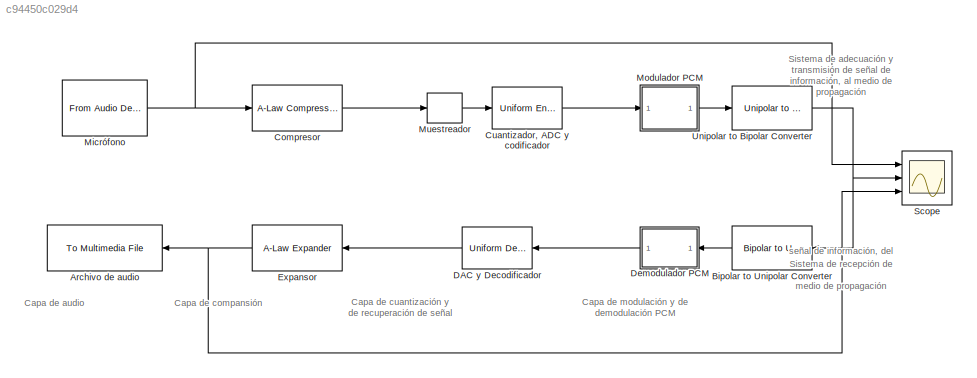
MODEL slx_c94450c029d4
KIND model
CONFIG AbsTol = auto
CONFIG EnableMultiTasking = on
CONFIG FixedStep = auto
CONFIG MaxStep = auto
CONFIG MinStep = 1e-5
CONFIG RelTol = 1e-3
CONFIG SampleTimeConstraint = Unconstrained
CONFIG Solver = VariableStepAuto
CONFIG SolverName = VariableStepAuto
CONFIG StartTime = 0.0
CONFIG StopTime = 10
BLOCK [Reference] Archivo de audio  REF=dspvision/To Multimedia File
  Ports = [1]
  SourceBlock = dspvision/To Multimedia File
  SourceProductBaseCode = VP
  SourceProductName = Computer Vision System Toolbox
  SourceType = To Multimedia File
BLOCK [Reference] Bipolar to Unipolar Converter   REF=commutil2/Bipolar to
Unipolar
Converter
  Ports = [1, 1]
  SourceBlock = commutil2/Bipolar to\nUnipolar\nConverter
  SourceProductBaseCode = CM
  SourceProductName = Communications System Toolbox
  SourceType = Bipolar to Unipolar Converter
BLOCK [Reference] Compresor  REF=commsrccod2/A-Law
Compressor
  Ports = [1, 1]
  SourceBlock = commsrccod2/A-Law\nCompressor
  SourceProductBaseCode = CM
  SourceProductName = Communications System Toolbox
  SourceType = A-Law Compressor
BLOCK [Reference] Cuantizador, ADC y codificador  REF=dspquant2/Uniform
Encoder
  Ports = [1, 1]
  SourceBlock = dspquant2/Uniform\nEncoder
  SourceProductBaseCode = DS
  SourceProductName = DSP System Toolbox
  SourceType = Uniform Encoder
BLOCK [Reference] DAC y Decodificador  REF=dspquant2/Uniform
Decoder
  Ports = [1, 1]
  SourceBlock = dspquant2/Uniform\nDecoder
  SourceProductBaseCode = DS
  SourceProductName = DSP System Toolbox
  SourceType = Uniform Decoder
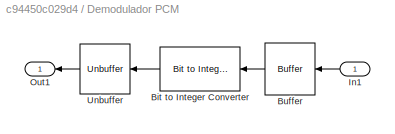
BLOCK [SubSystem] Demodulador PCM
  Ports = [1, 1]
  RequestExecContextInheritance = off
  Variant = off
BLOCK [Reference] Demodulador PCM/Bit to Integer Converter   REF=commutil2/Bit to Integer
Converter
  Ports = [1, 1]
  SourceBlock = commutil2/Bit to Integer\nConverter
  SourceProductBaseCode = CM
  SourceProductName = Communications System Toolbox
  SourceType = Bit to Integer Converter
BLOCK [Buffer] Demodulador PCM/Buffer 
  N = 32*3
  OutputFrames = off
BLOCK [Inport] Demodulador PCM/In1
  IconDisplay = Port number
BLOCK [Outport] Demodulador PCM/Out1
  IconDisplay = Port number
BLOCK [Unbuffer] Demodulador PCM/Unbuffer  
  Ports = [1, 1]
BLOCK [Reference] Expansor  REF=commsrccod2/A-Law
Expander
  Ports = [1, 1]
  SourceBlock = commsrccod2/A-Law\nExpander
  SourceProductBaseCode = CM
  SourceProductName = Communications System Toolbox
  SourceType = A-Law Expander
BLOCK [Reference] Micrófono  REF=dspobslib/From Audio
Device
  Ports = [0, 1]
  SourceBlock = dspobslib/From Audio\nDevice
  SourceProductBaseCode = DS
  SourceProductName = DSP System Toolbox
  SourceType = From Audio Device
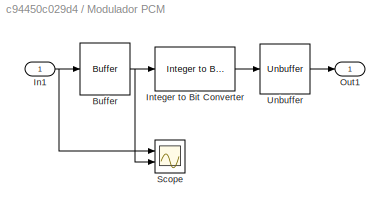
BLOCK [SubSystem] Modulador PCM
  Ports = [1, 1]
  RequestExecContextInheritance = off
  Variant = off
BLOCK [Buffer] Modulador PCM/Buffer 
  N = 3
  OutputFrames = off
BLOCK [Inport] Modulador PCM/In1
  IconDisplay = Port number
BLOCK [Reference] Modulador PCM/Integer to Bit Converter   REF=commutil2/Integer to Bit
Converter
  Ports = [1, 1]
  SourceBlock = commutil2/Integer to Bit\nConverter
  SourceProductBaseCode = CM
  SourceProductName = Communications System Toolbox
  SourceType = Integer to Bit Converter
BLOCK [Outport] Modulador PCM/Out1
  IconDisplay = Port number
BLOCK [Scope] Modulador PCM/Scope
  NumInputPorts = 2
  Ports = [2]
  ScopeSpecificationString = Simulink.scopes.TimeScopeBlockCfg('CurrentConfiguration', extmgr.ConfigurationSet(extmgr.Configuration('Core','General UI',true),extmgr.Configuration('Core','Source UI',true),extmgr.Configuration('Sources','WiredSimulink',true,'DataLoggingVariableName','ScopeData2'),extmgr.Configuration('Visuals','Time Domain',true,'SerializedDisplays',{struct('MinYLimReal','-268435456.00000','MaxYLimReal','241591...<+1497ch>
BLOCK [Unbuffer] Modulador PCM/Unbuffer 
  Ports = [1, 1]
BLOCK [ZeroOrderHold] Muestreador
  SampleTime = 1/(64*4000)
BLOCK [Scope] Scope
  NumInputPorts = 3
  Ports = [3]
  ScopeSpecificationString = Simulink.scopes.TimeScopeBlockCfg('CurrentConfiguration', extmgr.ConfigurationSet(extmgr.Configuration('Core','General UI',true,'FigureColor',[0.831372549019608 0.815686274509804 0.784313725490196]),extmgr.Configuration('Core','Source UI',true),extmgr.Configuration('Sources','WiredSimulink',true),extmgr.Configuration('Visuals','Time Domain',true,'SerializedDisplays',{struct('MinYLimReal','-1','Max...<+3208ch>
BLOCK [Reference] Unipolar to Bipolar Converter   REF=commutil2/Unipolar to
Bipolar
Converter
  Ports = [1, 1]
  SourceBlock = commutil2/Unipolar to\nBipolar\nConverter
  SourceProductBaseCode = CM
  SourceProductName = Communications System Toolbox
  SourceType = Unipolar to Bipolar Converter
ANNOTATION (root): Sistema de adecuación y transmisión de señal de información, al medio de propagación
ANNOTATION (root): Sistema de recepción de señal de información, del medio de propagación
ANNOTATION (root): Capa de cuantización y de recuperación de señal
ANNOTATION (root): Capa de modulación y de demodulación PCM
ANNOTATION (root): Capa de audio
ANNOTATION (root): Capa de compansión
LINE Bipolar to Unipolar Converter :1 -> Demodulador PCM:1
LINE Compresor:1 -> Muestreador:1
LINE Cuantizador, ADC y codificador:1 -> Modulador PCM:1
LINE DAC y Decodificador:1 -> Expansor:1
LINE Demodulador PCM/Bit to Integer Converter :1 -> Demodulador PCM/Unbuffer  :1
LINE Demodulador PCM/Buffer :1 -> Demodulador PCM/Bit to Integer Converter :1
LINE Demodulador PCM/In1:1 -> Demodulador PCM/Buffer :1
LINE Demodulador PCM/Unbuffer  :1 -> Demodulador PCM/Out1:1
LINE Demodulador PCM:1 -> DAC y Decodificador:1
NET Expansor:1 -> Archivo de audio:1, Scope:3
NET Micrófono:1 -> Compresor:1, Scope:1
NET Modulador PCM/Buffer :1 -> Modulador PCM/Integer to Bit Converter :1, Modulador PCM/Scope:2
NET Modulador PCM/In1:1 -> Modulador PCM/Buffer :1, Modulador PCM/Scope:1
LINE Modulador PCM/Integer to Bit Converter :1 -> Modulador PCM/Unbuffer :1
LINE Modulador PCM/Unbuffer :1 -> Modulador PCM/Out1:1
LINE Modulador PCM:1 -> Unipolar to Bipolar Converter :1
LINE Muestreador:1 -> Cuantizador, ADC y codificador:1
NET Unipolar to Bipolar Converter :1 -> Bipolar to Unipolar Converter :1, Scope:2
note: NET lines group one-source signal fan-out (src -> all destinations, sorted); 1:1 wires keep LINE
